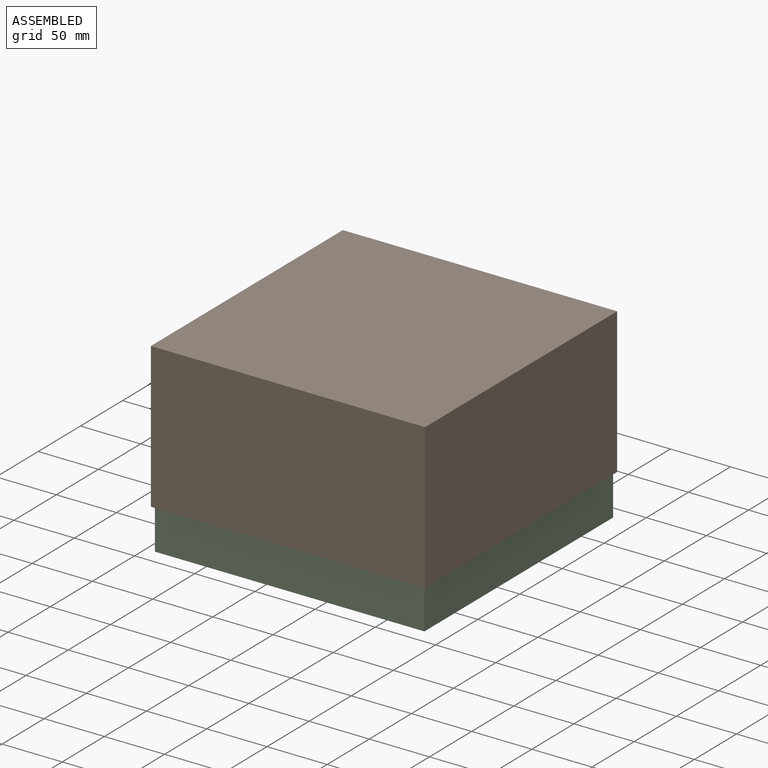
[diagram: assembled view]
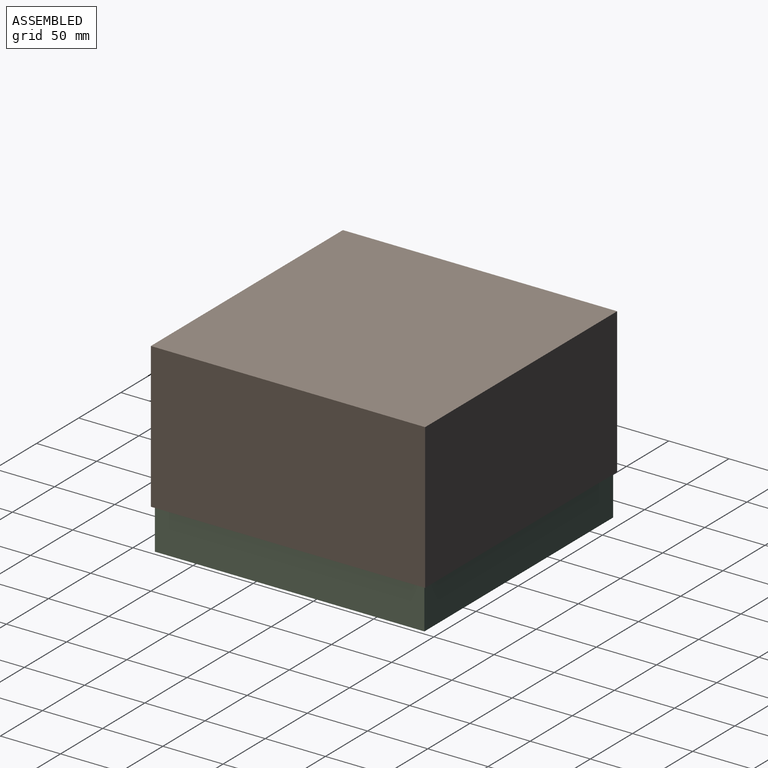
[diagram: assembled view, second angle]
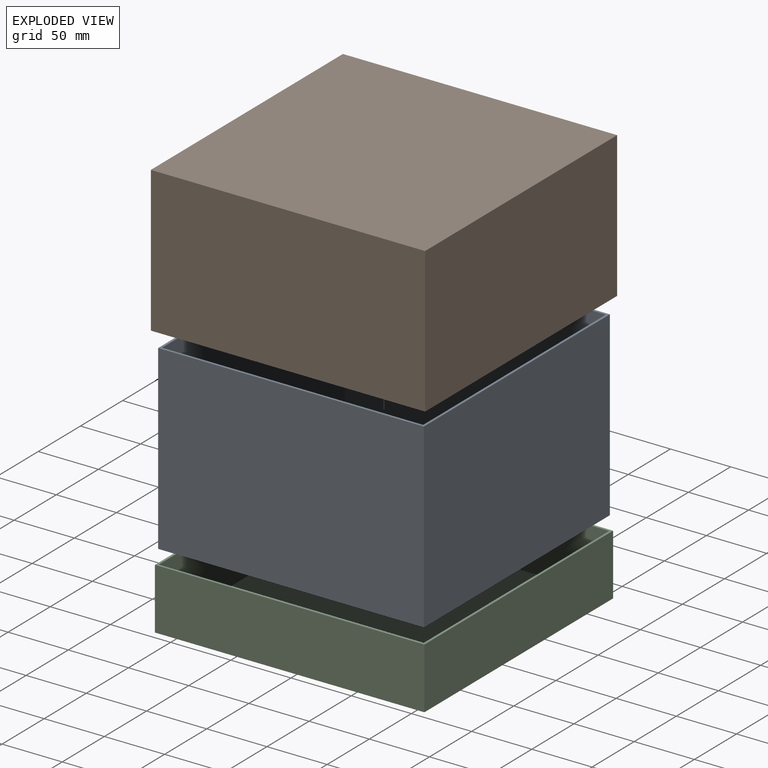
[diagram: exploded view]
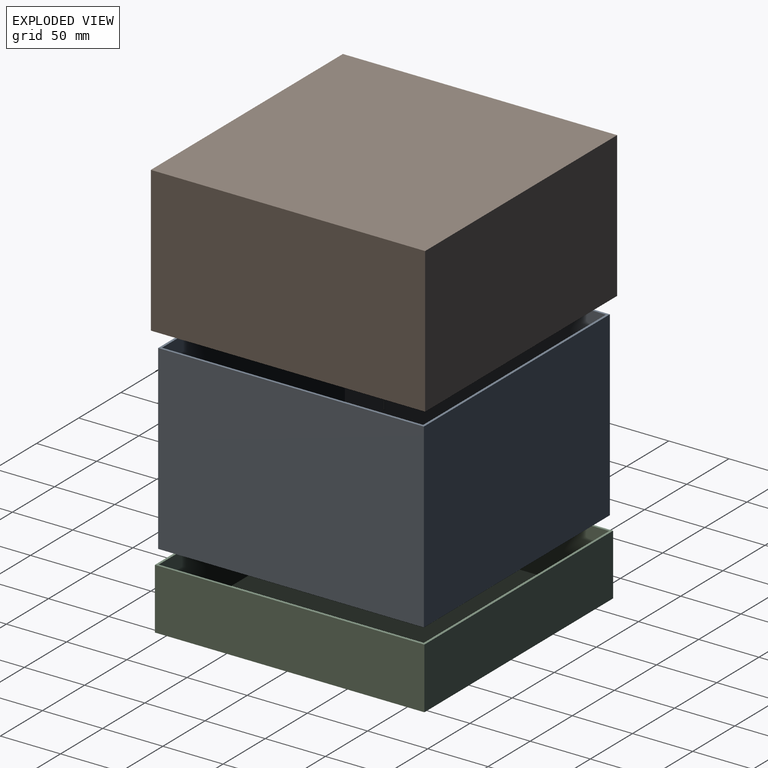
[diagram: exploded view, second angle]
ASSEMBLY  parts=3 mates=2
PART A: 11 faces, bbox 220.7x220.7x150.8 mm
  f0: plane 220.66x220.66mm, normal (0,0,1), area 1666.9mm2, adj f1,f2,f3,f4,f6,f7,f8,f9
  f1: plane 220.66x150.81mm, normal (0,-1,0), area 33278.7mm2, adj f0,f2,f4,f5
  f2: plane 220.66x150.81mm, normal (1,0,0), area 33278.7mm2, adj f0,f1,f3,f5
  f3: plane 220.66x150.81mm, normal (0,1,0), area 33278.7mm2, adj f0,f2,f4,f5
  f4: plane 220.66x150.81mm, normal (-1,0,0), area 33278.7mm2, adj f0,f1,f3,f5
  f5: plane 220.66x220.66mm, normal (0,0,-1), area 48691.9mm2, adj f1,f2,f3,f4
  f6: plane 216.85x148.91mm, normal (0,1,0), area 32291mm2, adj f0,f7,f9,f10
  f7: plane 216.85x148.91mm, normal (-1,0,0), area 32291mm2, adj f0,f6,f8,f10
  f8: plane 216.85x148.91mm, normal (0,-1,0), area 32291mm2, adj f0,f7,f9,f10
  f9: plane 216.85x148.91mm, normal (1,0,0), area 32291mm2, adj f0,f6,f8,f10
  f10: plane 216.85x216.85mm, normal (0,0,1), area 47025mm2, adj f6,f7,f8,f9
PART B: 11 faces, bbox 227.8x227.8x120.7 mm
  f0: plane 227.81x227.81mm, normal (0,0,-1), area 1721.4mm2, adj f1,f2,f3,f4,f6,f7,f8,f9
  f1: plane 227.81x120.65mm, normal (0,-1,0), area 27484.8mm2, adj f0,f2,f4,f5
  f2: plane 227.81x120.65mm, normal (1,0,0), area 27484.8mm2, adj f0,f1,f3,f5
  f3: plane 227.81x120.65mm, normal (0,1,0), area 27484.8mm2, adj f0,f2,f4,f5
  f4: plane 227.81x120.65mm, normal (-1,0,0), area 27484.8mm2, adj f0,f1,f3,f5
  f5: plane 227.81x227.81mm, normal (0,0,1), area 51895.7mm2, adj f1,f2,f3,f4
  f6: plane 224x118.75mm, normal (0,1,0), area 26598.4mm2, adj f0,f7,f9,f10
  f7: plane 224x118.75mm, normal (-1,0,0), area 26598.4mm2, adj f0,f6,f8,f10
  f8: plane 224x118.75mm, normal (0,-1,0), area 26598.4mm2, adj f0,f7,f9,f10
  f9: plane 224x118.75mm, normal (1,0,0), area 26598.4mm2, adj f0,f6,f8,f10
  f10: plane 224x224mm, normal (0,0,-1), area 50174.3mm2, adj f6,f7,f8,f9
PART C: 11 faces, bbox 223.8x223.8x50.8 mm
  f0: plane 223.84x223.84mm, normal (0,0,1), area 1691.1mm2, adj f1,f2,f3,f4,f6,f7,f8,f9
  f1: plane 223.84x50.8mm, normal (0,-1,0), area 11370.9mm2, adj f0,f2,f4,f5
  f2: plane 223.84x50.8mm, normal (1,0,0), area 11370.9mm2, adj f0,f1,f3,f5
  f3: plane 223.84x50.8mm, normal (0,1,0), area 11370.9mm2, adj f0,f2,f4,f5
  f4: plane 223.84x50.8mm, normal (-1,0,0), area 11370.9mm2, adj f0,f1,f3,f5
  f5: plane 223.84x223.84mm, normal (0,0,-1), area 50103.2mm2, adj f1,f2,f3,f4
  f6: plane 220.03x48.9mm, normal (0,1,0), area 10758.2mm2, adj f0,f7,f9,f10
  f7: plane 220.03x48.9mm, normal (-1,0,0), area 10758.2mm2, adj f0,f6,f8,f10
  f8: plane 220.03x48.9mm, normal (0,-1,0), area 10758.2mm2, adj f0,f7,f9,f10
  f9: plane 220.03x48.9mm, normal (1,0,0), area 10758.2mm2, adj f0,f6,f8,f10
  f10: plane 220.03x220.03mm, normal (0,0,1), area 48412.1mm2, adj f6,f7,f8,f9
PLACE A t=(0.78,9.19,-10.39)mm
PLACE B t=(0.78,9.19,21.67)mm
PLACE C t=(0.78,9.19,-12.3)mm
MATE planar B.f10 <-> A.f0  axis (0,0,-1) through (0.78,9.19,140.42)mm
MATE planar A.f5 <-> C.f10  axis (0,0,-1) through (0.78,9.19,-10.39)mm
